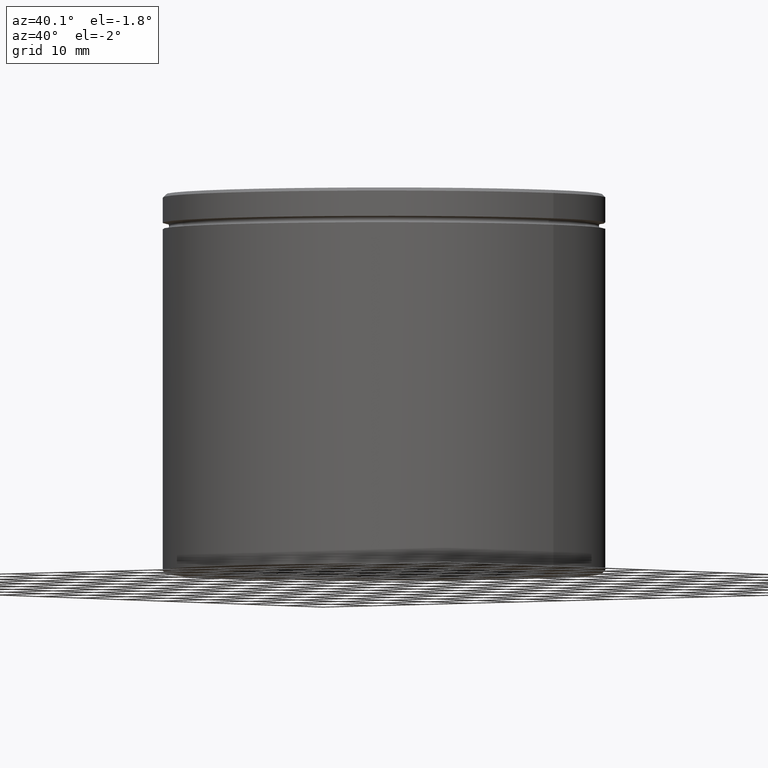
[diagram: clean part render]
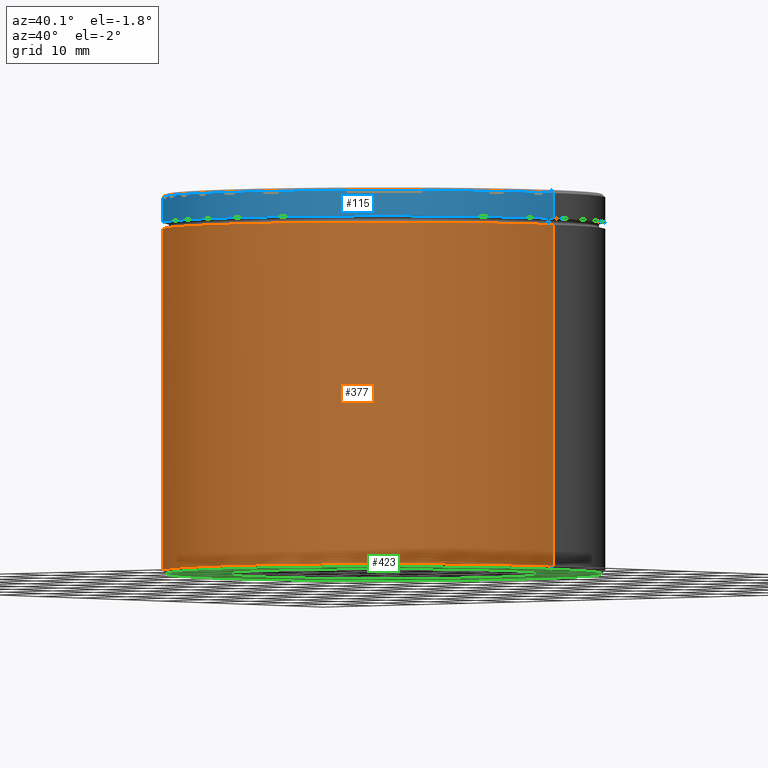
[diagram: same view with three faces highlighted in distinct colors, each labeled with its STEP entity id]
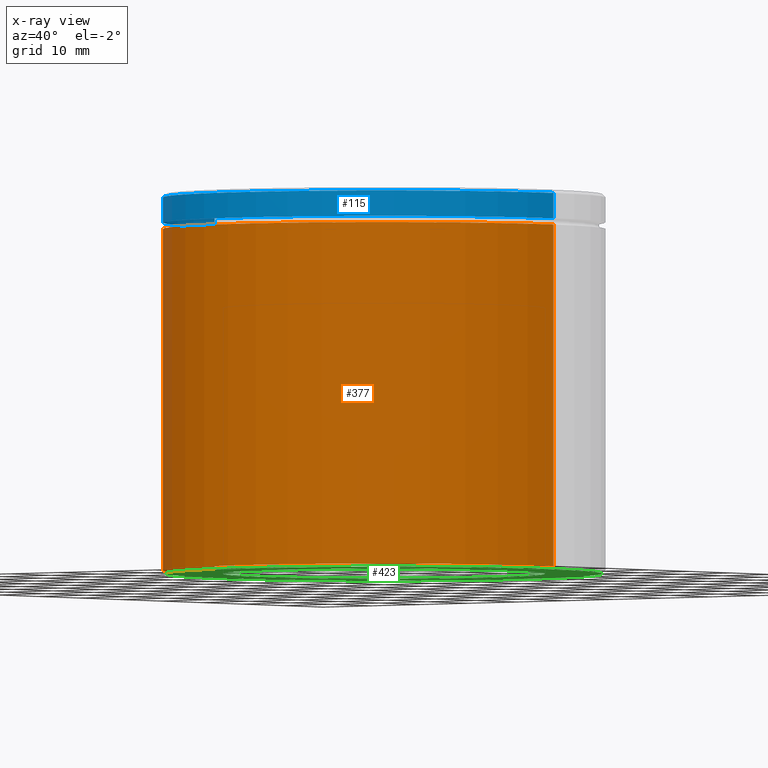
[diagram: x-ray of the same camera — body ghosted, the three highlighted faces saturated]
A machine part, auxiliary view with three faces highlighted in distinct colors.
The next image is the same camera in x-ray (body ghosted, the three faces saturated) — at least one of them is partly hidden behind the body in this view.
Their STEP definitions:

[orange] entity #377 — the highlighted cylindrical surface (partial cylindrical patch) has radius 35 mm, axis along (-0, -0, 1).
#22 = ORIENTED_EDGE ( 'NONE', *, *, #521, .T. ) ;
#40 = CYLINDRICAL_SURFACE ( 'NONE', #171, 35.00000000000000000 ) ;
#41 = VERTEX_POINT ( 'NONE', #322 ) ;
#45 = DIRECTION ( 'NONE',  ( -0.000000000000000000, -0.000000000000000000, 1.000000000000000000 ) ) ;
#55 = VERTEX_POINT ( 'NONE', #546 ) ;
#91 = DIRECTION ( 'NONE',  ( 1.000000000000000000, 0.000000000000000000, 0.000000000000000000 ) ) ;
#95 = CARTESIAN_POINT ( 'NONE',  ( 35.00000000000000000, 0.000000000000000000, -5.500000000000000000 ) ) ;
#98 = ORIENTED_EDGE ( 'NONE', *, *, #468, .F. ) ;
#103 = EDGE_CURVE ( 'NONE', #458, #55, #156, .T. ) ;
#117 = DIRECTION ( 'NONE',  ( -1.000000000000000000, 0.000000000000000000, 0.000000000000000000 ) ) ;
#121 = DIRECTION ( 'NONE',  ( -0.000000000000000000, -0.000000000000000000, 1.000000000000000000 ) ) ;
#124 = DIRECTION ( 'NONE',  ( -0.000000000000000000, -0.000000000000000000, 1.000000000000000000 ) ) ;
#125 = CIRCLE ( 'NONE', #203, 35.00000000000000000 ) ;
#130 = LINE ( 'NONE', #190, #195 ) ;
#145 = VERTEX_POINT ( 'NONE', #95 ) ;
#149 = LINE ( 'NONE', #554, #544 ) ;
#156 = CIRCLE ( 'NONE', #472, 35.00000000000000000 ) ;
#171 = AXIS2_PLACEMENT_3D ( 'NONE', #211, #124, #292 ) ;
#190 = CARTESIAN_POINT ( 'NONE',  ( -35.00000000000000000, 4.286263797015736496E-15, 0.000000000000000000 ) ) ;
#191 = CARTESIAN_POINT ( 'NONE',  ( 0.000000000000000000, 0.000000000000000000, -5.500000000000000000 ) ) ;
#195 = VECTOR ( 'NONE', #45, 1000.000000000000000 ) ;
#200 = EDGE_CURVE ( 'NONE', #41, #145, #125, .T. ) ;
#202 = ORIENTED_EDGE ( 'NONE', *, *, #103, .T. ) ;
#203 = AXIS2_PLACEMENT_3D ( 'NONE', #191, #306, #91 ) ;
#211 = CARTESIAN_POINT ( 'NONE',  ( 0.000000000000000000, 0.000000000000000000, 0.000000000000000000 ) ) ;
#248 = FACE_OUTER_BOUND ( 'NONE', #459, .T. ) ;
#292 = DIRECTION ( 'NONE',  ( 1.000000000000000000, 0.000000000000000000, 0.000000000000000000 ) ) ;
#306 = DIRECTION ( 'NONE',  ( -0.000000000000000000, -0.000000000000000000, 1.000000000000000000 ) ) ;
#322 = CARTESIAN_POINT ( 'NONE',  ( -35.00000000000000000, 4.286263797015736496E-15, -5.500000000000000000 ) ) ;
#330 = CARTESIAN_POINT ( 'NONE',  ( 0.000000000000000000, 0.000000000000000000, -59.50000000000001421 ) ) ;
#356 = CARTESIAN_POINT ( 'NONE',  ( -35.00000000000000000, 4.286263797015736496E-15, -59.50000000000001421 ) ) ;
#377 = ADVANCED_FACE ( 'NONE', ( #248 ), #40, .T. ) ;
#458 = VERTEX_POINT ( 'NONE', #356 ) ;
#459 = EDGE_LOOP ( 'NONE', ( #98, #202, #22, #550 ) ) ;
#468 = EDGE_CURVE ( 'NONE', #458, #41, #130, .T. ) ;
#472 = AXIS2_PLACEMENT_3D ( 'NONE', #330, #505, #117 ) ;
#505 = DIRECTION ( 'NONE',  ( -0.000000000000000000, -0.000000000000000000, 1.000000000000000000 ) ) ;
#521 = EDGE_CURVE ( 'NONE', #55, #145, #149, .T. ) ;
#544 = VECTOR ( 'NONE', #121, 1000.000000000000000 ) ;
#546 = CARTESIAN_POINT ( 'NONE',  ( 35.00000000000000000, 0.000000000000000000, -59.50000000000001421 ) ) ;
#550 = ORIENTED_EDGE ( 'NONE', *, *, #200, .F. ) ;
#554 = CARTESIAN_POINT ( 'NONE',  ( 35.00000000000000000, 0.000000000000000000, 0.000000000000000000 ) ) ;

[blue] entity #115 — the highlighted cylindrical surface (partial cylindrical patch) has radius 35 mm, axis along (-0, -0, 1).
#6 = CARTESIAN_POINT ( 'NONE',  ( 0.000000000000000000, 0.000000000000000000, -0.4999999999999727995 ) ) ;
#27 = VERTEX_POINT ( 'NONE', #367 ) ;
#32 = EDGE_CURVE ( 'NONE', #188, #439, #74, .T. ) ;
#39 = CIRCLE ( 'NONE', #352, 35.00000000000000000 ) ;
#48 = VECTOR ( 'NONE', #539, 1000.000000000000000 ) ;
#54 = CYLINDRICAL_SURFACE ( 'NONE', #456, 35.00000000000000000 ) ;
#56 = CARTESIAN_POINT ( 'NONE',  ( -35.00000000000000000, 4.286263797015736496E-15, -0.4999999999999727995 ) ) ;
#57 = DIRECTION ( 'NONE',  ( 1.000000000000000000, 0.000000000000000000, 0.000000000000000000 ) ) ;
#74 = LINE ( 'NONE', #491, #408 ) ;
#89 = EDGE_LOOP ( 'NONE', ( #448, #206, #480, #271 ) ) ;
#105 = DIRECTION ( 'NONE',  ( -0.000000000000000000, -0.000000000000000000, 1.000000000000000000 ) ) ;
#115 = ADVANCED_FACE ( 'NONE', ( #232 ), #54, .T. ) ;
#188 = VERTEX_POINT ( 'NONE', #264 ) ;
#206 = ORIENTED_EDGE ( 'NONE', *, *, #209, .T. ) ;
#209 = EDGE_CURVE ( 'NONE', #188, #27, #519, .T. ) ;
#231 = DIRECTION ( 'NONE',  ( 1.000000000000000000, 0.000000000000000000, 0.000000000000000000 ) ) ;
#232 = FACE_OUTER_BOUND ( 'NONE', #89, .T. ) ;
#240 = EDGE_CURVE ( 'NONE', #27, #486, #257, .T. ) ;
#257 = LINE ( 'NONE', #354, #48 ) ;
#264 = CARTESIAN_POINT ( 'NONE',  ( -35.00000000000000000, 4.286263797015736496E-15, -4.500000000000000888 ) ) ;
#269 = AXIS2_PLACEMENT_3D ( 'NONE', #358, #315, #438 ) ;
#271 = ORIENTED_EDGE ( 'NONE', *, *, #444, .T. ) ;
#272 = CARTESIAN_POINT ( 'NONE',  ( 0.000000000000000000, 0.000000000000000000, 0.000000000000000000 ) ) ;
#315 = DIRECTION ( 'NONE',  ( -0.000000000000000000, -0.000000000000000000, 1.000000000000000000 ) ) ;
#352 = AXIS2_PLACEMENT_3D ( 'NONE', #6, #529, #231 ) ;
#354 = CARTESIAN_POINT ( 'NONE',  ( 35.00000000000000000, 0.000000000000000000, 0.000000000000000000 ) ) ;
#358 = CARTESIAN_POINT ( 'NONE',  ( 0.000000000000000000, 0.000000000000000000, -4.500000000000000888 ) ) ;
#362 = DIRECTION ( 'NONE',  ( -0.000000000000000000, -0.000000000000000000, 1.000000000000000000 ) ) ;
#367 = CARTESIAN_POINT ( 'NONE',  ( 35.00000000000000000, 0.000000000000000000, -4.500000000000000888 ) ) ;
#408 = VECTOR ( 'NONE', #362, 1000.000000000000000 ) ;
#438 = DIRECTION ( 'NONE',  ( 1.000000000000000000, 0.000000000000000000, 0.000000000000000000 ) ) ;
#439 = VERTEX_POINT ( 'NONE', #56 ) ;
#444 = EDGE_CURVE ( 'NONE', #486, #439, #39, .T. ) ;
#448 = ORIENTED_EDGE ( 'NONE', *, *, #32, .F. ) ;
#456 = AXIS2_PLACEMENT_3D ( 'NONE', #272, #105, #57 ) ;
#480 = ORIENTED_EDGE ( 'NONE', *, *, #240, .T. ) ;
#486 = VERTEX_POINT ( 'NONE', #536 ) ;
#491 = CARTESIAN_POINT ( 'NONE',  ( -35.00000000000000000, 4.286263797015736496E-15, 0.000000000000000000 ) ) ;
#519 = CIRCLE ( 'NONE', #269, 35.00000000000000000 ) ;
#529 = DIRECTION ( 'NONE',  ( 0.000000000000000000, 0.000000000000000000, -1.000000000000000000 ) ) ;
#536 = CARTESIAN_POINT ( 'NONE',  ( 35.00000000000000000, 0.000000000000000000, -0.4999999999999727995 ) ) ;
#539 = DIRECTION ( 'NONE',  ( -0.000000000000000000, -0.000000000000000000, 1.000000000000000000 ) ) ;

[green] entity #423 — the highlighted planar face has unit normal (0, 0, -1).
#7 = ORIENTED_EDGE ( 'NONE', *, *, #416, .T. ) ;
#53 = CARTESIAN_POINT ( 'NONE',  ( 0.000000000000000000, 35.00000000000000000, -60.00000000000000000 ) ) ;
#60 = CIRCLE ( 'NONE', #370, 25.50000000000000000 ) ;
#100 = CARTESIAN_POINT ( 'NONE',  ( 0.000000000000000000, 0.000000000000000000, -60.00000000000000000 ) ) ;
#107 = ORIENTED_EDGE ( 'NONE', *, *, #148, .F. ) ;
#120 = CIRCLE ( 'NONE', #244, 34.50000000000002132 ) ;
#132 = DIRECTION ( 'NONE',  ( 0.000000000000000000, 0.000000000000000000, -1.000000000000000000 ) ) ;
#140 = DIRECTION ( 'NONE',  ( -1.000000000000000000, 0.000000000000000000, -0.000000000000000000 ) ) ;
#148 = EDGE_CURVE ( 'NONE', #506, #265, #60, .T. ) ;
#172 = DIRECTION ( 'NONE',  ( 0.000000000000000000, 0.000000000000000000, -1.000000000000000000 ) ) ;
#178 = ORIENTED_EDGE ( 'NONE', *, *, #569, .F. ) ;
#179 = DIRECTION ( 'NONE',  ( -1.000000000000000000, 0.000000000000000000, 0.000000000000000000 ) ) ;
#185 = CIRCLE ( 'NONE', #250, 34.50000000000002132 ) ;
#229 = EDGE_LOOP ( 'NONE', ( #7, #542 ) ) ;
#243 = VERTEX_POINT ( 'NONE', #537 ) ;
#244 = AXIS2_PLACEMENT_3D ( 'NONE', #100, #132, #431 ) ;
#250 = AXIS2_PLACEMENT_3D ( 'NONE', #303, #440, #475 ) ;
#265 = VERTEX_POINT ( 'NONE', #413 ) ;
#266 = PLANE ( 'NONE',  #565 ) ;
#270 = CIRCLE ( 'NONE', #511, 25.50000000000000000 ) ;
#297 = CARTESIAN_POINT ( 'NONE',  ( 34.50000000000002132, 0.000000000000000000, -60.00000000000000000 ) ) ;
#303 = CARTESIAN_POINT ( 'NONE',  ( 0.000000000000000000, 0.000000000000000000, -60.00000000000000000 ) ) ;
#312 = VERTEX_POINT ( 'NONE', #297 ) ;
#318 = CARTESIAN_POINT ( 'NONE',  ( -25.50000000000000000, 0.000000000000000000, -60.00000000000000000 ) ) ;
#327 = EDGE_LOOP ( 'NONE', ( #107, #178 ) ) ;
#335 = DIRECTION ( 'NONE',  ( -1.000000000000000000, 0.000000000000000000, 0.000000000000000000 ) ) ;
#370 = AXIS2_PLACEMENT_3D ( 'NONE', #393, #482, #179 ) ;
#386 = EDGE_CURVE ( 'NONE', #243, #312, #120, .T. ) ;
#393 = CARTESIAN_POINT ( 'NONE',  ( 0.000000000000000000, 0.000000000000000000, -60.00000000000000000 ) ) ;
#413 = CARTESIAN_POINT ( 'NONE',  ( 25.50000000000000000, 3.122849337825749828E-15, -60.00000000000000000 ) ) ;
#416 = EDGE_CURVE ( 'NONE', #312, #243, #185, .T. ) ;
#423 = ADVANCED_FACE ( 'NONE', ( #437, #478 ), #266, .T. ) ;
#424 = DIRECTION ( 'NONE',  ( 0.000000000000000000, 0.000000000000000000, -1.000000000000000000 ) ) ;
#431 = DIRECTION ( 'NONE',  ( -1.000000000000000000, 0.000000000000000000, 0.000000000000000000 ) ) ;
#437 = FACE_OUTER_BOUND ( 'NONE', #229, .T. ) ;
#440 = DIRECTION ( 'NONE',  ( 0.000000000000000000, 0.000000000000000000, -1.000000000000000000 ) ) ;
#475 = DIRECTION ( 'NONE',  ( -1.000000000000000000, 0.000000000000000000, 0.000000000000000000 ) ) ;
#478 = FACE_BOUND ( 'NONE', #327, .T. ) ;
#482 = DIRECTION ( 'NONE',  ( 0.000000000000000000, 0.000000000000000000, -1.000000000000000000 ) ) ;
#506 = VERTEX_POINT ( 'NONE', #318 ) ;
#511 = AXIS2_PLACEMENT_3D ( 'NONE', #563, #424, #335 ) ;
#537 = CARTESIAN_POINT ( 'NONE',  ( -34.50000000000002132, 4.255647627037053498E-15, -60.00000000000000000 ) ) ;
#542 = ORIENTED_EDGE ( 'NONE', *, *, #386, .T. ) ;
#563 = CARTESIAN_POINT ( 'NONE',  ( 0.000000000000000000, 0.000000000000000000, -60.00000000000000000 ) ) ;
#565 = AXIS2_PLACEMENT_3D ( 'NONE', #53, #172, #140 ) ;
#569 = EDGE_CURVE ( 'NONE', #265, #506, #270, .T. ) ;